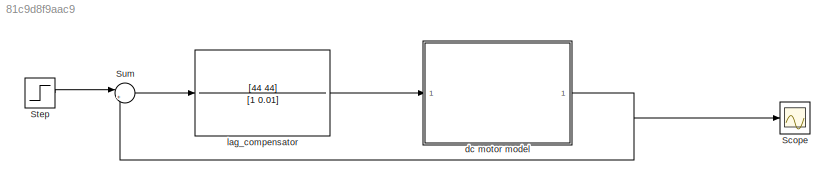
MODEL slx_81c9d8f9aac9
KIND model
CONFIG AbsTol = auto
CONFIG EnableMultiTasking = off
CONFIG FixedStep = auto
CONFIG MaxStep = auto
CONFIG MinStep = auto
CONFIG RelTol = 1e-3
CONFIG SampleTimeConstraint = Unconstrained
CONFIG SolverName = VariableStepAuto
CONFIG StartTime = 0.0
CONFIG StopTime = 10.0
BLOCK [Scope] Scope
  Floating = off
  NumInputPorts = 1
  Ports = [1]
  ScopeSpecificationString = Simulink.scopes.TimeScopeBlockCfg('CurrentConfiguration', extmgr.ConfigurationSet(extmgr.Configuration('Core','General UI',true),extmgr.Configuration('Core','Source UI',true),extmgr.Configuration('Sources','WiredSimulink',true),extmgr.Configuration('Visuals','Time Domain',true,'SerializedDisplays',{struct('MinYLimReal','-0.12759','MaxYLimReal','1.14832','YLabelReal','','MinYLimMag','0.00000','MaxY...<+1360ch>
BLOCK [Step] Step
  SampleTime = 0
BLOCK [Sum] Sum
  Inputs = |+-
  Ports = [2, 1]
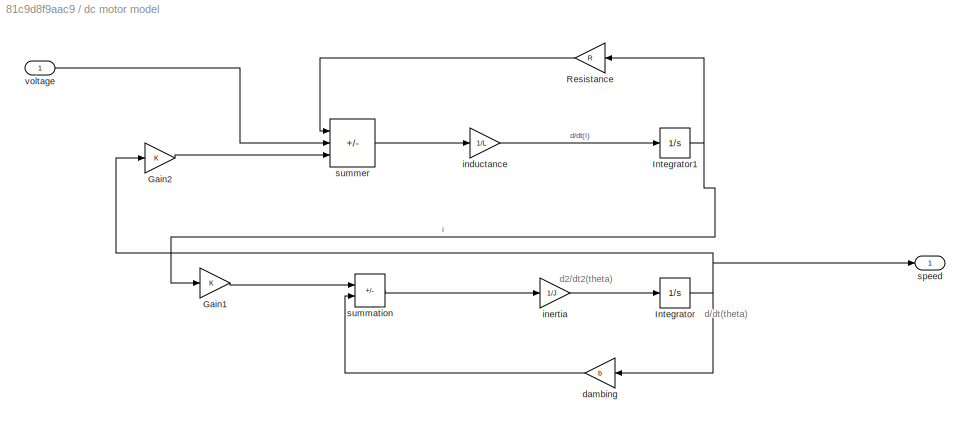
BLOCK [SubSystem] dc motor model
  Ports = [1, 1]
  RequestExecContextInheritance = off
BLOCK [Gain] dc motor model/Gain1
  Gain = K
BLOCK [Gain] dc motor model/Gain2
  Gain = K
BLOCK [Integrator] dc motor model/Integrator
  Ports = [1, 1]
BLOCK [Integrator] dc motor model/Integrator1
  Ports = [1, 1]
BLOCK [Gain] dc motor model/Resistance
  Gain = R
BLOCK [Gain] dc motor model/dambing
  Gain = b
BLOCK [Gain] dc motor model/inductance
  Gain = 1/L
BLOCK [Gain] dc motor model/inertia
  Gain = 1/J
BLOCK [Outport] dc motor model/speed
BLOCK [Sum] dc motor model/summation
  IconShape = rectangular
  Inputs = +-
  Ports = [2, 1]
BLOCK [Sum] dc motor model/summer
  IconShape = rectangular
  Inputs = -+-
  Ports = [3, 1]
BLOCK [Inport] dc motor model/voltage
BLOCK [TransferFcn] lag_compensator
  Denominator = [1 0.01]
  Numerator = [44 44]
ANNOTATION dc motor model: d/dt(theta)
ANNOTATION dc motor model: d2/dt2(theta)
LINE Step:1 -> Sum:1
LINE Sum:1 -> lag_compensator:1
LINE dc motor model/Gain1:1 -> dc motor model/summation:1
LINE dc motor model/Gain2:1 -> dc motor model/summer:3
NET dc motor model/Integrator1:1 -> dc motor model/Gain1:1, dc motor model/Resistance:1
NET dc motor model/Integrator:1 -> dc motor model/Gain2:1, dc motor model/dambing:1, dc motor model/speed:1
LINE dc motor model/Resistance:1 -> dc motor model/summer:1
LINE dc motor model/dambing:1 -> dc motor model/summation:2
LINE dc motor model/inductance:1 -> dc motor model/Integrator1:1
LINE dc motor model/inertia:1 -> dc motor model/Integrator:1
LINE dc motor model/summation:1 -> dc motor model/inertia:1
LINE dc motor model/summer:1 -> dc motor model/inductance:1
LINE dc motor model/voltage:1 -> dc motor model/summer:2
NET dc motor model:1 -> Scope:1, Sum:2
LINE lag_compensator:1 -> dc motor model:1
note: NET lines group one-source signal fan-out (src -> all destinations, sorted); 1:1 wires keep LINE
